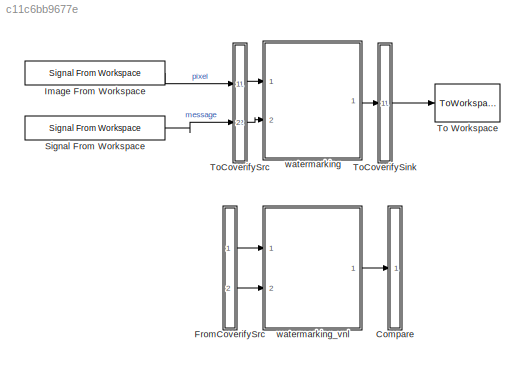
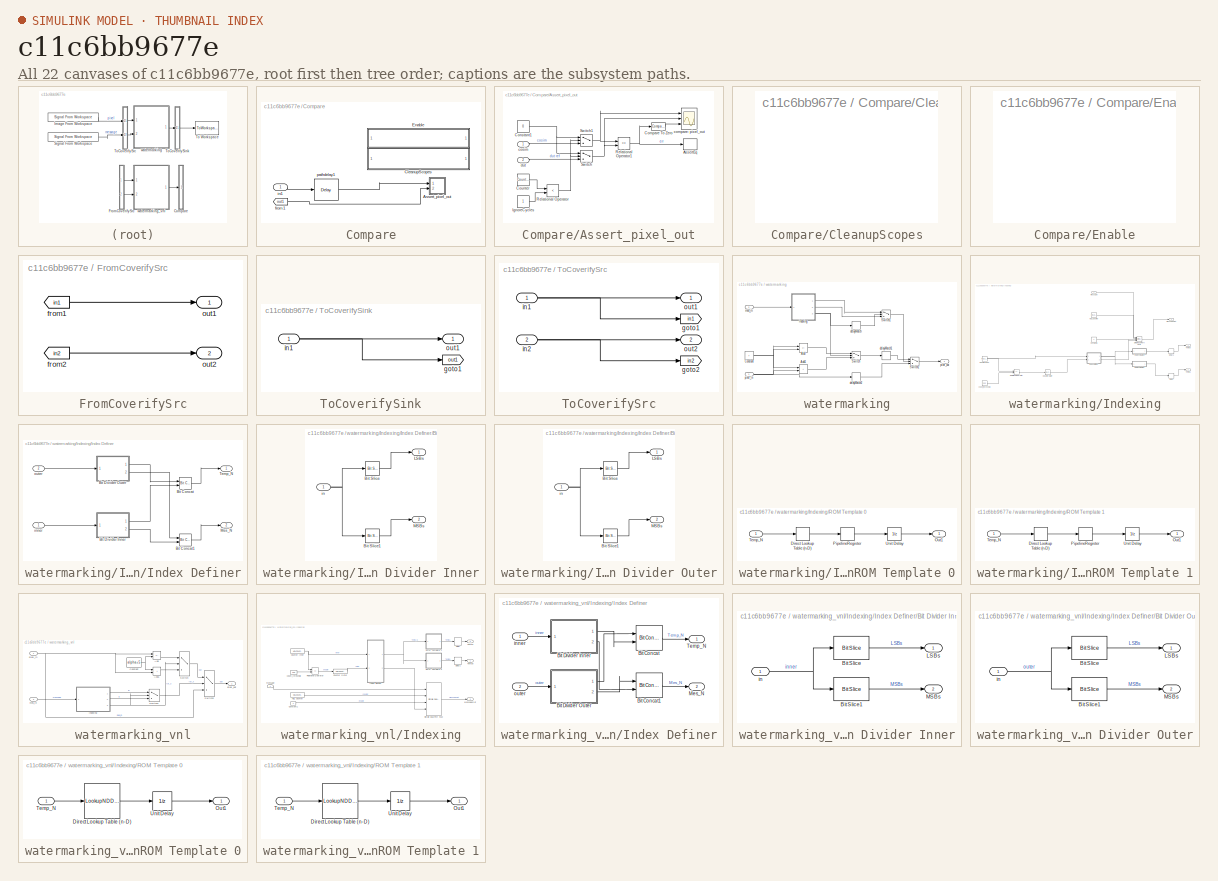
[diagram: thumbnail index - all 22 canvases of the model, root first then tree order]
MODEL slx_c11c6bb9677e
KIND model
CONFIG AbsTol = auto
CONFIG EnableMultiTasking = off
CONFIG FixedStep = auto
CONFIG MaxStep = auto
CONFIG MinStep = auto
CONFIG RelTol = 1e-3
CONFIG SampleTimeConstraint = Unconstrained
CONFIG SolverName = VariableStepAuto
CONFIG StartTime = 0.0
CONFIG StopTime = 10.0
BLOCK [SubSystem] Compare
  Ports = [1]
  RequestExecContextInheritance = off
BLOCK [SubSystem] Compare/Assert_pixel_out
  Ports = [2]
  RequestExecContextInheritance = off
BLOCK [Assertion] Compare/Assert_pixel_out/AssertEq
  StopWhenAssertionFail = off
BLOCK [Reference] Compare/Assert_pixel_out/Compare To Zero  REF=simulink/Logic and Bit
Operations/Compare
To Zero
  Ports = [1, 1]
  SourceBlock = simulink/Logic and Bit\nOperations/Compare\nTo Zero
  SourceProductBaseCode = SL
  SourceType = Compare To Zero
BLOCK [Constant] Compare/Assert_pixel_out/Constant1
  OutDataTypeStr = Inherit: Inherit via back propagation
  SampleTime = -1
  Value = 0
BLOCK [Reference] Compare/Assert_pixel_out/Counter  REF=simulink/Sources/Counter
Free-Running
  Ports = [0, 1]
  SourceBlock = simulink/Sources/Counter\nFree-Running
  SourceProductBaseCode = SL
  SourceType = Counter Free-Running
BLOCK [Constant] Compare/Assert_pixel_out/IgnoreCycles
  OutDataTypeStr = Inherit: Inherit via back propagation
  SampleTime = -1
BLOCK [RelationalOperator] Compare/Assert_pixel_out/Relational Operator
  InputSameDT = off
  Operator = <
  OutDataTypeStr = boolean
  Ports = [2, 1]
BLOCK [RelationalOperator] Compare/Assert_pixel_out/Relational Operator1
  InputSameDT = off
  Operator = ==
  OutDataTypeStr = boolean
  Ports = [2, 1]
BLOCK [Switch] Compare/Assert_pixel_out/Switch
  Criteria = u2 ~= 0
  InputSameDT = off
  SaturateOnIntegerOverflow = off
BLOCK [Switch] Compare/Assert_pixel_out/Switch1
  Criteria = u2 ~= 0
  InputSameDT = off
  SaturateOnIntegerOverflow = off
BLOCK [Scope] Compare/Assert_pixel_out/compare: pixel_out
  Floating = off
  NumInputPorts = 3
  Ports = [3]
  ScopeSpecificationString = Simulink.scopes.TimeScopeBlockCfg('CurrentConfiguration', extmgr.ConfigurationSet(extmgr.Configuration('Core','General UI',true,'MessageLogAutoOpenMode','for warn/fail messages','ShowCloseAll',true,'ShowBringAllForward',true),extmgr.Configuration('Core','Source UI',true,'PlaybackToolbar',true),extmgr.Configuration('Sources','WiredSimulink',true,'PointsPerSignal',50000,'DataLoggingVariableName','Sc...<+3290ch>
BLOCK [Inport] Compare/Assert_pixel_out/cosim
BLOCK [Inport] Compare/Assert_pixel_out/dut
  Port = 2
BLOCK [SubSystem] Compare/CleanupScopes
  OpenFcn = blkName = gcb; %self block\nidx = regexp(blkName, '/CleanupScopes$', 'once');\nblkParent = blkName(1:idx-1);\nblks=find_system(blkParent, 'LookUnderMasks', 'all','blocktype', 'Scope');\nfor itr = 1:length(blks)\n	 hScopeCfg = get_param(blks{itr},'ScopeConfiguration');\n	 hScopeCfg.Visible = ~ hScopeCfg.Visible;\nend\ndrawnow;
  Ports = []
  RequestExecContextInheritance = off
BLOCK [SubSystem] Compare/Enable
  OpenFcn = blkName = gcb;\nidx = regexp(blkName, '/Enable$', 'once');\nblkParent = blkName(1:idx-1);\nblks=find_system(blkParent, 'LookUnderMasks', 'all','blocktype', 'Assertion');\ne = get_param(blks{1}, 'Enabled');\nif strcmp(e, 'on'), f= 'off';, else, f = 'on';, end\nfor ii=1:length(blks), set_param(blks{ii}, 'Enabled', f);, end\nset_param(gcb, 'MaskDisplay',['fprintf(message(''hdlcoder:cosim:vnl_dblclick_assert...<+47ch>
  Ports = []
  RequestExecContextInheritance = off
BLOCK [From] Compare/from1
  GotoTag = out1
  TagVisibility = global
BLOCK [Inport] Compare/in1
BLOCK [Delay] Compare/pathdelay1
  DelayLength = 1
  InputPortMap = u0
  Ports = [1, 1]
BLOCK [SubSystem] FromCoverifySrc
  Ports = [0, 2]
  RequestExecContextInheritance = off
BLOCK [From] FromCoverifySrc/from1
  GotoTag = in1
  TagVisibility = global
BLOCK [From] FromCoverifySrc/from2
  GotoTag = in2
  TagVisibility = global
BLOCK [Outport] FromCoverifySrc/out1
BLOCK [Outport] FromCoverifySrc/out2
  Port = 2
BLOCK [Reference] Image From Workspace  REF=dspsrcs4/Signal From
Workspace
  Ports = [0, 1]
  SourceBlock = dspsrcs4/Signal From\nWorkspace
  SourceProductBaseCode = DS
  SourceType = Signal From Workspace
BLOCK [Reference] Signal From Workspace  REF=dspsrcs4/Signal From
Workspace
  Ports = [0, 1]
  SourceBlock = dspsrcs4/Signal From\nWorkspace
  SourceProductBaseCode = DS
  SourceType = Signal From Workspace
BLOCK [ToWorkspace] To Workspace
  MaxDataPoints = inf
  Ports = [1]
  SampleTime = -1
  Save2DSignal = 2-D array (concatenate along first dimension)
  VariableName = Watermarked
BLOCK [SubSystem] ToCoverifySink
  Ports = [1, 1]
  RequestExecContextInheritance = off
BLOCK [Goto] ToCoverifySink/goto1
  GotoTag = out1
  TagVisibility = global
BLOCK [Inport] ToCoverifySink/in1
BLOCK [Outport] ToCoverifySink/out1
BLOCK [SubSystem] ToCoverifySrc
  Ports = [2, 2]
  RequestExecContextInheritance = off
BLOCK [Goto] ToCoverifySrc/goto1
  GotoTag = in1
  TagVisibility = global
BLOCK [Goto] ToCoverifySrc/goto2
  GotoTag = in2
  TagVisibility = global
BLOCK [Inport] ToCoverifySrc/in1
BLOCK [Inport] ToCoverifySrc/in2
  Port = 2
BLOCK [Outport] ToCoverifySrc/out1
BLOCK [Outport] ToCoverifySrc/out2
  Port = 2
BLOCK [SubSystem] watermarking
  Ports = [2, 1]
  RequestExecContextInheritance = off
  TreatAsAtomicUnit = on
BLOCK [Sum] watermarking/Add
  AccumDataTypeStr = uint8
  IconShape = rectangular
  Inputs = +-
  OutDataTypeStr = uint8
  Ports = [2, 1]
  SampleTime = 1
BLOCK [Sum] watermarking/Add1
  AccumDataTypeStr = uint8
  IconShape = rectangular
  OutDataTypeStr = uint8
  Ports = [2, 1]
  SampleTime = 1
BLOCK [Constant] watermarking/Constant
  OutDataTypeStr = uint8
  SampleTime = 1
  Value = 7
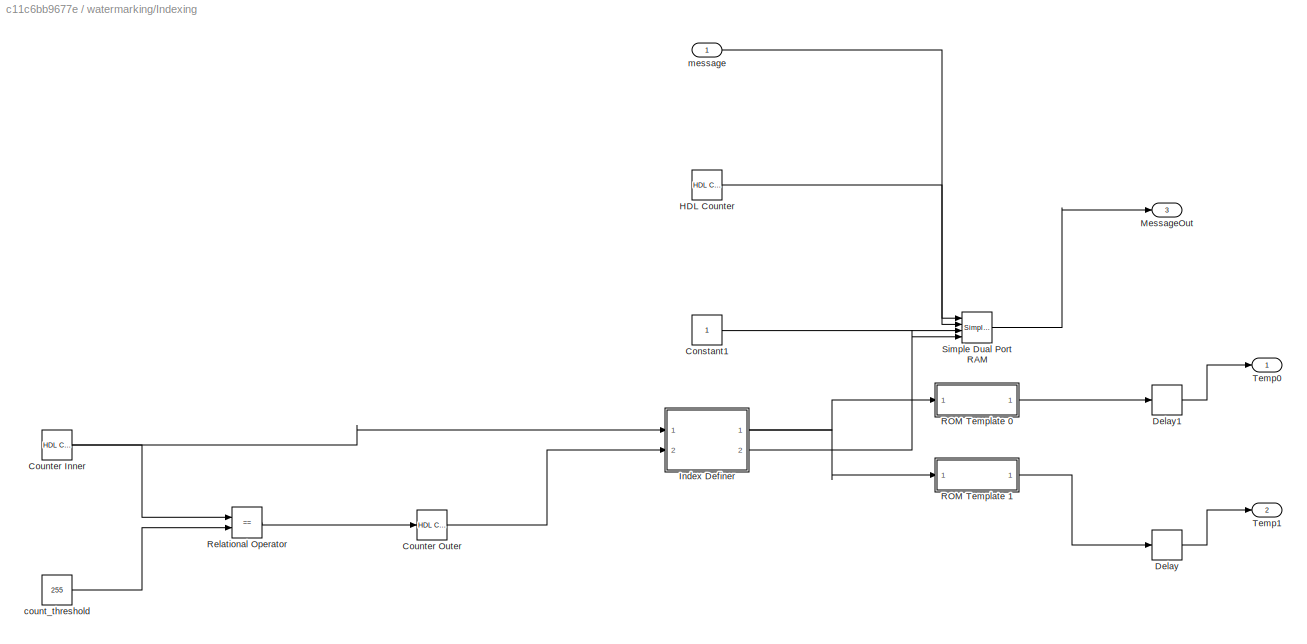
BLOCK [SubSystem] watermarking/Indexing
  Ports = [1, 3]
  RequestExecContextInheritance = off
BLOCK [Constant] watermarking/Indexing/Constant1
  OutDataTypeStr = boolean
  SampleTime = 1
BLOCK [Reference] watermarking/Indexing/Counter Inner  REF=hdlsllib/Sources/HDL Counter
  Ports = [0, 1]
  SourceBlock = hdlsllib/Sources/HDL Counter
  SourceProductBaseCode = SL
  SourceType = HDL Counter
BLOCK [Reference] watermarking/Indexing/Counter Outer  REF=hdlsllib/Sources/HDL Counter
  Ports = [1, 1]
  SourceBlock = hdlsllib/Sources/HDL Counter
  SourceProductBaseCode = SL
  SourceType = HDL Counter
BLOCK [Delay] watermarking/Indexing/Delay
  DelayLength = double(1)
  InitialCondition = 0
  InputPortMap = u0
  Ports = [1, 1]
  SampleTime = 1
BLOCK [Delay] watermarking/Indexing/Delay1
  DelayLength = double(1)
  InitialCondition = 0
  InputPortMap = u0
  Ports = [1, 1]
  SampleTime = 1
BLOCK [Reference] watermarking/Indexing/HDL Counter  REF=hdlsllib/Sources/HDL Counter
  Ports = [0, 1]
  SourceBlock = hdlsllib/Sources/HDL Counter
  SourceProductBaseCode = SL
  SourceType = HDL Counter
BLOCK [SubSystem] watermarking/Indexing/Index Definer
  Ports = [2, 2]
  RequestExecContextInheritance = off
BLOCK [Reference] watermarking/Indexing/Index Definer/Bit Concat  REF=hdlsllib/Logic and Bit
Operations/Bit Concat
  Ports = [2, 1]
  SourceBlock = hdlsllib/Logic and Bit\nOperations/Bit Concat
  SourceProductBaseCode = SL
  SourceType = Bit Concat
BLOCK [Reference] watermarking/Indexing/Index Definer/Bit Concat1  REF=hdlsllib/Logic and Bit
Operations/Bit Concat
  Ports = [2, 1]
  SourceBlock = hdlsllib/Logic and Bit\nOperations/Bit Concat
  SourceProductBaseCode = SL
  SourceType = Bit Concat
BLOCK [SubSystem] watermarking/Indexing/Index Definer/Bit Divider Inner
  Ports = [1, 2]
  RequestExecContextInheritance = off
BLOCK [Reference] watermarking/Indexing/Index Definer/Bit Divider Inner/Bit Slice  REF=hdlsllib/Logic and Bit
Operations/Bit Slice
  Ports = [1, 1]
  SourceBlock = hdlsllib/Logic and Bit\nOperations/Bit Slice
  SourceProductBaseCode = SL
  SourceType = Bit Slice
BLOCK [Reference] watermarking/Indexing/Index Definer/Bit Divider Inner/Bit Slice1  REF=hdlsllib/Logic and Bit
Operations/Bit Slice
  Ports = [1, 1]
  SourceBlock = hdlsllib/Logic and Bit\nOperations/Bit Slice
  SourceProductBaseCode = SL
  SourceType = Bit Slice
BLOCK [Outport] watermarking/Indexing/Index Definer/Bit Divider Inner/LSBs
  SampleTime = 1
BLOCK [Outport] watermarking/Indexing/Index Definer/Bit Divider Inner/MSBs
  Port = 2
  SampleTime = 1
BLOCK [Inport] watermarking/Indexing/Index Definer/Bit Divider Inner/in
  OutDataTypeStr = uint8
  PortDimensions = 1
  SampleTime = 1
BLOCK [SubSystem] watermarking/Indexing/Index Definer/Bit Divider Outer
  Ports = [1, 2]
  RequestExecContextInheritance = off
BLOCK [Reference] watermarking/Indexing/Index Definer/Bit Divider Outer/Bit Slice  REF=hdlsllib/Logic and Bit
Operations/Bit Slice
  Ports = [1, 1]
  SourceBlock = hdlsllib/Logic and Bit\nOperations/Bit Slice
  SourceProductBaseCode = SL
  SourceType = Bit Slice
BLOCK [Reference] watermarking/Indexing/Index Definer/Bit Divider Outer/Bit Slice1  REF=hdlsllib/Logic and Bit
Operations/Bit Slice
  Ports = [1, 1]
  SourceBlock = hdlsllib/Logic and Bit\nOperations/Bit Slice
  SourceProductBaseCode = SL
  SourceType = Bit Slice
BLOCK [Outport] watermarking/Indexing/Index Definer/Bit Divider Outer/LSBs
  SampleTime = 1
BLOCK [Outport] watermarking/Indexing/Index Definer/Bit Divider Outer/MSBs
  Port = 2
  SampleTime = 1
BLOCK [Inport] watermarking/Indexing/Index Definer/Bit Divider Outer/in
  OutDataTypeStr = uint8
  PortDimensions = 1
  SampleTime = 1
BLOCK [Outport] watermarking/Indexing/Index Definer/Mes_N
  Port = 2
  SampleTime = 1
BLOCK [Outport] watermarking/Indexing/Index Definer/Temp_N
  SampleTime = 1
BLOCK [Inport] watermarking/Indexing/Index Definer/inner
  OutDataTypeStr = uint8
  PortDimensions = 1
  SampleTime = 1
BLOCK [Inport] watermarking/Indexing/Index Definer/outer
  OutDataTypeStr = uint8
  Port = 2
  PortDimensions = 1
  SampleTime = 1
BLOCK [Outport] watermarking/Indexing/MessageOut
  Port = 3
  SampleTime = 1
BLOCK [SubSystem] watermarking/Indexing/ROM Template 0
  Ports = [1, 1]
  RequestExecContextInheritance = off
BLOCK [LookupNDDirect] watermarking/Indexing/ROM Template 0/Direct Lookup Table (n-D)
  DiagnosticForOutOfRangeInput = Error
  NumberOfTableDimensions = 1
  Ports = [1, 1]
  SampleTime = 1
  Table = reshape(logical([1 1 1 0 0 0 0 0 1 1 1 0 0 0 0 0 0 0 0 0 0 1 1 1 0 0 0 0 0 1 1 1 1 1 0 0 0 0 0 0 0 0 1 1 1 0 0 0 0 0 0 0 1 1 0 0 0 0 0 0 0 0 0 1 0 0 0 0 0 0 0 0 0 0 0 1 1 1 0 0 0 0 1 1 1 0 0 0 0 0 0 0 0 0 0 0 0 0 0 0 0 0 0 0 0 0 0 0 0 1 1 1 1 1 1 1 0 0 0 0 0 0 0 0 0 0 0 0 0 0 0 0 0 0 0 0 0 0 0 0 0 0 1 1 1 1 0 0 0 0 0 0 0 0 0 0 0 0 0 0 0 0 0 0 0 0 0 0 0 0 0 0 0 0 0 0 0 0 0 0 0 0 0 0 0 0 0 0 0 0 0 0...<+1683ch>
  TableDataTypeStr = boolean
BLOCK [Outport] watermarking/Indexing/ROM Template 0/Out1
  SampleTime = 1
BLOCK [Delay] watermarking/Indexing/ROM Template 0/PipelineRegister
  DelayLength = double(1)
  InitialCondition = 0
  InputPortMap = u0
  Ports = [1, 1]
  SampleTime = 1
BLOCK [Inport] watermarking/Indexing/ROM Template 0/Temp_N
  OutDataTypeStr = fixdt(0, 10, 0)
  PortDimensions = 1
  SampleTime = 1
BLOCK [UnitDelay] watermarking/Indexing/ROM Template 0/Unit Delay
  SampleTime = 1
BLOCK [SubSystem] watermarking/Indexing/ROM Template 1
  Ports = [1, 1]
  RequestExecContextInheritance = off
BLOCK [LookupNDDirect] watermarking/Indexing/ROM Template 1/Direct Lookup Table (n-D)
  DiagnosticForOutOfRangeInput = Error
  NumberOfTableDimensions = 1
  Ports = [1, 1]
  SampleTime = 1
  Table = reshape(logical([1 1 0 0 0 0 0 0 0 0 0 1 1 1 0 0 0 0 0 0 1 1 0 0 0 0 0 0 0 0 0 0 1 1 1 0 0 0 0 0 0 0 1 1 1 0 0 0 0 0 0 0 0 1 1 1 0 0 0 0 0 0 0 1 0 1 1 1 1 0 0 0 1 1 1 0 0 0 0 0 0 0 0 0 0 0 1 1 1 1 0 0 0 1 1 1 0 0 0 1 1 1 1 1 1 1 0 0 0 0 0 0 0 0 0 0 0 0 0 0 1 1 1 1 1 1 1 0 0 0 0 0 0 1 1 1 0 0 0 0 0 0 0 0 0 0 0 0 0 0 0 0 0 0 1 1 1 0 0 0 0 0 0 0 0 0 0 0 0 0 0 0 0 0 0 0 1 1 0 0 0 0 0 0 0 0 0 0 0 0 0 0...<+1683ch>
  TableDataTypeStr = boolean
BLOCK [Outport] watermarking/Indexing/ROM Template 1/Out1
  SampleTime = 1
BLOCK [Delay] watermarking/Indexing/ROM Template 1/PipelineRegister
  DelayLength = double(1)
  InitialCondition = 0
  InputPortMap = u0
  Ports = [1, 1]
  SampleTime = 1
BLOCK [Inport] watermarking/Indexing/ROM Template 1/Temp_N
  OutDataTypeStr = fixdt(0, 10, 0)
  PortDimensions = 1
  SampleTime = 1
BLOCK [UnitDelay] watermarking/Indexing/ROM Template 1/Unit Delay
  SampleTime = 1
BLOCK [RelationalOperator] watermarking/Indexing/Relational Operator
  InputSameDT = off
  Operator = ==
  OutDataTypeStr = boolean
  Ports = [2, 1]
  SampleTime = 1
BLOCK [Reference] watermarking/Indexing/Simple Dual Port RAM  REF=hdlsllib/HDL RAMs/Simple Dual Port RAM
  Ports = [4, 1]
  SourceBlock = hdlsllib/HDL RAMs/Simple Dual Port RAM
  SourceProductBaseCode = SL
  SourceType = Simple Dual-port RAM
BLOCK [Outport] watermarking/Indexing/Temp0
  SampleTime = 1
BLOCK [Outport] watermarking/Indexing/Temp1
  Port = 2
  SampleTime = 1
BLOCK [Constant] watermarking/Indexing/count_threshold
  OutDataTypeStr = uint8
  SampleTime = 1
  Value = 255
BLOCK [Inport] watermarking/Indexing/message
  OutDataTypeStr = boolean
  PortDimensions = 1
  SampleTime = 1
BLOCK [Switch] watermarking/Switch
  Criteria = u2 ~= 0
  InputSameDT = off
  OutDataTypeStr = uint8
  SampleTime = 1
  SaturateOnIntegerOverflow = off
  Threshold = double(0)
BLOCK [Switch] watermarking/Switch1
  Criteria = u2 ~= 0
  InputSameDT = off
  OutDataTypeStr = boolean
  SampleTime = 1
  SaturateOnIntegerOverflow = off
  Threshold = double(0)
BLOCK [Switch] watermarking/Switch2
  Criteria = u2 ~= 0
  InputSameDT = off
  OutDataTypeStr = uint8
  SampleTime = 1
  SaturateOnIntegerOverflow = off
  Threshold = double(0)
BLOCK [Delay] watermarking/delayMatch
  DelayLength = double(1)
  InitialCondition = 0
  InputPortMap = u0
  Ports = [1, 1]
  SampleTime = 1
BLOCK [Delay] watermarking/delayMatch1
  DelayLength = double(1)
  InitialCondition = 0
  InputPortMap = u0
  Ports = [1, 1]
  SampleTime = 1
BLOCK [Delay] watermarking/delayMatch2
  DelayLength = double(1)
  InitialCondition = 0
  InputPortMap = u0
  Ports = [1, 1]
  SampleTime = 1
BLOCK [Inport] watermarking/mes_in
  OutDataTypeStr = boolean
  Port = 2
  PortDimensions = 1
  SampleTime = 1
BLOCK [Inport] watermarking/pixel_in
  OutDataTypeStr = uint8
  PortDimensions = 1
  SampleTime = 1
BLOCK [Outport] watermarking/pixel_out
  SampleTime = 1
  VectorParamsAs1DForOutWhenUnconnected = off
BLOCK [SubSystem] watermarking_vnl
  Ports = [2, 1]
  RequestExecContextInheritance = off
  TreatAsAtomicUnit = on
BLOCK [Sum] watermarking_vnl/Add
  IconShape = rectangular
  Inputs = +-
  OutDataTypeStr = uint8
  OutMax = [255]
  OutMin = [0]
  Ports = [2, 1]
BLOCK [Sum] watermarking_vnl/Add1
  IconShape = rectangular
  OutDataTypeStr = uint8
  OutMax = [255]
  OutMin = [0]
  Ports = [2, 1]
BLOCK [Constant] watermarking_vnl/Constant
  OutDataTypeStr = uint8
  SampleTime = -1
  Value = alpha+5
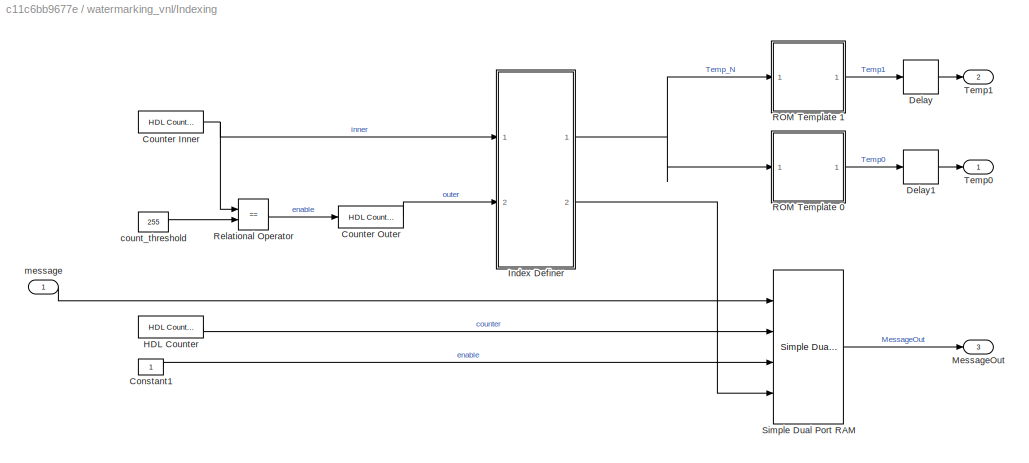
BLOCK [SubSystem] watermarking_vnl/Indexing
  Ports = [1, 3]
  RequestExecContextInheritance = off
BLOCK [Constant] watermarking_vnl/Indexing/Constant1
  OutDataTypeStr = boolean
  OutMax = [1]
  OutMin = [1]
  SampleTime = -1
BLOCK [Reference] watermarking_vnl/Indexing/Counter Inner  REF=hdlsllib/Sources/HDL Counter
  Ports = [0, 1]
  SourceBlock = hdlsllib/Sources/HDL Counter
  SourceProductBaseCode = SL
  SourceType = HDL Counter
BLOCK [Reference] watermarking_vnl/Indexing/Counter Outer  REF=hdlsllib/Sources/HDL Counter
  Ports = [1, 1]
  SourceBlock = hdlsllib/Sources/HDL Counter
  SourceProductBaseCode = SL
  SourceType = HDL Counter
BLOCK [Delay] watermarking_vnl/Indexing/Delay
  DelayLength = 1
  InitialCondition = 0
  InputPortMap = u0
  Ports = [1, 1]
BLOCK [Delay] watermarking_vnl/Indexing/Delay1
  DelayLength = 1
  InitialCondition = 0
  InputPortMap = u0
  Ports = [1, 1]
BLOCK [Reference] watermarking_vnl/Indexing/HDL Counter  REF=hdlsllib/Sources/HDL Counter
  Ports = [0, 1]
  SourceBlock = hdlsllib/Sources/HDL Counter
  SourceProductBaseCode = SL
  SourceType = HDL Counter
BLOCK [SubSystem] watermarking_vnl/Indexing/Index Definer
  Ports = [2, 2]
  RequestExecContextInheritance = off
BLOCK [Reference] watermarking_vnl/Indexing/Index Definer/Bit Concat  REF=hdlsllib/Logic and Bit
Operations/Bit Concat
  Ports = [2, 1]
  SourceBlock = hdlsllib/Logic and Bit\nOperations/Bit Concat
  SourceProductBaseCode = SL
  SourceType = Bit Concat
BLOCK [Reference] watermarking_vnl/Indexing/Index Definer/Bit Concat1  REF=hdlsllib/Logic and Bit
Operations/Bit Concat
  Ports = [2, 1]
  SourceBlock = hdlsllib/Logic and Bit\nOperations/Bit Concat
  SourceProductBaseCode = SL
  SourceType = Bit Concat
BLOCK [SubSystem] watermarking_vnl/Indexing/Index Definer/Bit Divider Inner
  Ports = [1, 2]
  RequestExecContextInheritance = off
BLOCK [Reference] watermarking_vnl/Indexing/Index Definer/Bit Divider Inner/Bit Slice  REF=hdlsllib/Logic and Bit
Operations/Bit Slice
  Ports = [1, 1]
  SourceBlock = hdlsllib/Logic and Bit\nOperations/Bit Slice
  SourceProductBaseCode = SL
  SourceType = Bit Slice
BLOCK [Reference] watermarking_vnl/Indexing/Index Definer/Bit Divider Inner/Bit Slice1  REF=hdlsllib/Logic and Bit
Operations/Bit Slice
  Ports = [1, 1]
  SourceBlock = hdlsllib/Logic and Bit\nOperations/Bit Slice
  SourceProductBaseCode = SL
  SourceType = Bit Slice
BLOCK [Outport] watermarking_vnl/Indexing/Index Definer/Bit Divider Inner/LSBs
BLOCK [Outport] watermarking_vnl/Indexing/Index Definer/Bit Divider Inner/MSBs
  Port = 2
BLOCK [Inport] watermarking_vnl/Indexing/Index Definer/Bit Divider Inner/in
BLOCK [SubSystem] watermarking_vnl/Indexing/Index Definer/Bit Divider Outer
  Ports = [1, 2]
  RequestExecContextInheritance = off
BLOCK [Reference] watermarking_vnl/Indexing/Index Definer/Bit Divider Outer/Bit Slice  REF=hdlsllib/Logic and Bit
Operations/Bit Slice
  Ports = [1, 1]
  SourceBlock = hdlsllib/Logic and Bit\nOperations/Bit Slice
  SourceProductBaseCode = SL
  SourceType = Bit Slice
BLOCK [Reference] watermarking_vnl/Indexing/Index Definer/Bit Divider Outer/Bit Slice1  REF=hdlsllib/Logic and Bit
Operations/Bit Slice
  Ports = [1, 1]
  SourceBlock = hdlsllib/Logic and Bit\nOperations/Bit Slice
  SourceProductBaseCode = SL
  SourceType = Bit Slice
BLOCK [Outport] watermarking_vnl/Indexing/Index Definer/Bit Divider Outer/LSBs
BLOCK [Outport] watermarking_vnl/Indexing/Index Definer/Bit Divider Outer/MSBs
  Port = 2
BLOCK [Inport] watermarking_vnl/Indexing/Index Definer/Bit Divider Outer/in
BLOCK [Outport] watermarking_vnl/Indexing/Index Definer/Mes_N
  Port = 2
BLOCK [Outport] watermarking_vnl/Indexing/Index Definer/Temp_N
BLOCK [Inport] watermarking_vnl/Indexing/Index Definer/inner
BLOCK [Inport] watermarking_vnl/Indexing/Index Definer/outer
  Port = 2
BLOCK [Outport] watermarking_vnl/Indexing/MessageOut
  Port = 3
BLOCK [SubSystem] watermarking_vnl/Indexing/ROM Template 0
  Ports = [1, 1]
  RequestExecContextInheritance = off
BLOCK [LookupNDDirect] watermarking_vnl/Indexing/ROM Template 0/Direct Lookup Table (n-D)
  DiagnosticForOutOfRangeInput = Error
  NumberOfTableDimensions = 1
  Ports = [1, 1]
  Table = T0
  TableMax = [1]
  TableMin = [0]
BLOCK [Outport] watermarking_vnl/Indexing/ROM Template 0/Out1
BLOCK [Inport] watermarking_vnl/Indexing/ROM Template 0/Temp_N
BLOCK [UnitDelay] watermarking_vnl/Indexing/ROM Template 0/Unit Delay
  HasFrameUpgradeWarning = on
  SampleTime = -1
BLOCK [SubSystem] watermarking_vnl/Indexing/ROM Template 1
  Ports = [1, 1]
  RequestExecContextInheritance = off
BLOCK [LookupNDDirect] watermarking_vnl/Indexing/ROM Template 1/Direct Lookup Table (n-D)
  DiagnosticForOutOfRangeInput = Error
  NumberOfTableDimensions = 1
  Ports = [1, 1]
  Table = T1
  TableMax = [1]
  TableMin = [0]
BLOCK [Outport] watermarking_vnl/Indexing/ROM Template 1/Out1
BLOCK [Inport] watermarking_vnl/Indexing/ROM Template 1/Temp_N
BLOCK [UnitDelay] watermarking_vnl/Indexing/ROM Template 1/Unit Delay
  HasFrameUpgradeWarning = on
  SampleTime = -1
BLOCK [RelationalOperator] watermarking_vnl/Indexing/Relational Operator
  InputSameDT = off
  Operator = ==
  OutDataTypeStr = boolean
  Ports = [2, 1]
BLOCK [Reference] watermarking_vnl/Indexing/Simple Dual Port RAM  REF=hdlsllib/HDL RAMs/Simple Dual Port RAM
  Ports = [4, 1]
  SourceBlock = hdlsllib/HDL RAMs/Simple Dual Port RAM
  SourceProductBaseCode = SL
  SourceType = Simple Dual-port RAM
BLOCK [Outport] watermarking_vnl/Indexing/Temp0
BLOCK [Outport] watermarking_vnl/Indexing/Temp1
  Port = 2
BLOCK [Constant] watermarking_vnl/Indexing/count_threshold
  OutDataTypeStr = uint8
  OutMax = [255]
  OutMin = [255]
  SampleTime = -1
  Value = 255
BLOCK [Inport] watermarking_vnl/Indexing/message
BLOCK [Switch] watermarking_vnl/Switch
  Criteria = u2 ~= 0
  InputSameDT = off
  SaturateOnIntegerOverflow = off
BLOCK [Switch] watermarking_vnl/Switch1
  Criteria = u2 ~= 0
  InputSameDT = off
  SaturateOnIntegerOverflow = off
BLOCK [Switch] watermarking_vnl/Switch2
  Criteria = u2 ~= 0
  InputSameDT = off
  SaturateOnIntegerOverflow = off
BLOCK [Inport] watermarking_vnl/mes_in
  Port = 2
BLOCK [Inport] watermarking_vnl/pixel_in
BLOCK [Outport] watermarking_vnl/pixel_out
  VectorParamsAs1DForOutWhenUnconnected = off
LINE Compare/Assert_pixel_out/Compare To Zero:1 -> Compare/Assert_pixel_out/compare: pixel_out:3
NET Compare/Assert_pixel_out/Constant1:1 -> Compare/Assert_pixel_out/Switch1:1, Compare/Assert_pixel_out/Switch:1
LINE Compare/Assert_pixel_out/Counter:1 -> Compare/Assert_pixel_out/Relational Operator:1
LINE Compare/Assert_pixel_out/IgnoreCycles:1 -> Compare/Assert_pixel_out/Relational Operator:2
NET Compare/Assert_pixel_out/Relational Operator1:1 -> Compare/Assert_pixel_out/AssertEq:1, Compare/Assert_pixel_out/Compare To Zero:1
NET Compare/Assert_pixel_out/Relational Operator:1 -> Compare/Assert_pixel_out/Switch1:2, Compare/Assert_pixel_out/Switch:2
NET Compare/Assert_pixel_out/Switch1:1 -> Compare/Assert_pixel_out/Relational Operator1:1, Compare/Assert_pixel_out/compare: pixel_out:1
NET Compare/Assert_pixel_out/Switch:1 -> Compare/Assert_pixel_out/Relational Operator1:2, Compare/Assert_pixel_out/compare: pixel_out:2
LINE Compare/Assert_pixel_out/cosim:1 -> Compare/Assert_pixel_out/Switch1:3
LINE Compare/Assert_pixel_out/dut:1 -> Compare/Assert_pixel_out/Switch:3
LINE Compare/from1:1 -> Compare/Assert_pixel_out:2
LINE Compare/in1:1 -> Compare/pathdelay1:1
LINE Compare/pathdelay1:1 -> Compare/Assert_pixel_out:1
LINE FromCoverifySrc/from1:1 -> FromCoverifySrc/out1:1
LINE FromCoverifySrc/from2:1 -> FromCoverifySrc/out2:1
LINE FromCoverifySrc:1 -> watermarking_vnl:1
LINE FromCoverifySrc:2 -> watermarking_vnl:2
LINE Image From Workspace:1 -> ToCoverifySrc:1
LINE Signal From Workspace:1 -> ToCoverifySrc:2
NET ToCoverifySink/in1:1 -> ToCoverifySink/goto1:1, ToCoverifySink/out1:1
LINE ToCoverifySink:1 -> To Workspace:1
NET ToCoverifySrc/in1:1 -> ToCoverifySrc/goto1:1, ToCoverifySrc/out1:1
NET ToCoverifySrc/in2:1 -> ToCoverifySrc/goto2:1, ToCoverifySrc/out2:1
LINE ToCoverifySrc:1 -> watermarking:1
LINE ToCoverifySrc:2 -> watermarking:2
LINE watermarking/Add1:1 -> watermarking/Switch:3
LINE watermarking/Add:1 -> watermarking/Switch:1
NET watermarking/Constant:1 -> watermarking/Add1:1, watermarking/Add:2
LINE watermarking/Indexing/Constant1:1 -> watermarking/Indexing/Simple Dual Port RAM:3
NET watermarking/Indexing/Counter Inner:1 -> watermarking/Indexing/Index Definer:1, watermarking/Indexing/Relational Operator:1
LINE watermarking/Indexing/Counter Outer:1 -> watermarking/Indexing/Index Definer:2
LINE watermarking/Indexing/Delay1:1 -> watermarking/Indexing/Temp0:1
LINE watermarking/Indexing/Delay:1 -> watermarking/Indexing/Temp1:1
LINE watermarking/Indexing/HDL Counter:1 -> watermarking/Indexing/Simple Dual Port RAM:2
LINE watermarking/Indexing/Index Definer/Bit Concat1:1 -> watermarking/Indexing/Index Definer/Mes_N:1
LINE watermarking/Indexing/Index Definer/Bit Concat:1 -> watermarking/Indexing/Index Definer/Temp_N:1
LINE watermarking/Indexing/Index Definer/Bit Divider Inner/Bit Slice1:1 -> watermarking/Indexing/Index Definer/Bit Divider Inner/MSBs:1
LINE watermarking/Indexing/Index Definer/Bit Divider Inner/Bit Slice:1 -> watermarking/Indexing/Index Definer/Bit Divider Inner/LSBs:1
NET watermarking/Indexing/Index Definer/Bit Divider Inner/in:1 -> watermarking/Indexing/Index Definer/Bit Divider Inner/Bit Slice1:1, watermarking/Indexing/Index Definer/Bit Divider Inner/Bit Slice:1
LINE watermarking/Indexing/Index Definer/Bit Divider Inner:1 -> watermarking/Indexing/Index Definer/Bit Concat:2
LINE watermarking/Indexing/Index Definer/Bit Divider Inner:2 -> watermarking/Indexing/Index Definer/Bit Concat1:2
LINE watermarking/Indexing/Index Definer/Bit Divider Outer/Bit Slice1:1 -> watermarking/Indexing/Index Definer/Bit Divider Outer/MSBs:1
LINE watermarking/Indexing/Index Definer/Bit Divider Outer/Bit Slice:1 -> watermarking/Indexing/Index Definer/Bit Divider Outer/LSBs:1
NET watermarking/Indexing/Index Definer/Bit Divider Outer/in:1 -> watermarking/Indexing/Index Definer/Bit Divider Outer/Bit Slice1:1, watermarking/Indexing/Index Definer/Bit Divider Outer/Bit Slice:1
LINE watermarking/Indexing/Index Definer/Bit Divider Outer:1 -> watermarking/Indexing/Index Definer/Bit Concat:1
LINE watermarking/Indexing/Index Definer/Bit Divider Outer:2 -> watermarking/Indexing/Index Definer/Bit Concat1:1
LINE watermarking/Indexing/Index Definer/inner:1 -> watermarking/Indexing/Index Definer/Bit Divider Inner:1
LINE watermarking/Indexing/Index Definer/outer:1 -> watermarking/Indexing/Index Definer/Bit Divider Outer:1
NET watermarking/Indexing/Index Definer:1 -> watermarking/Indexing/ROM Template 0:1, watermarking/Indexing/ROM Template 1:1
LINE watermarking/Indexing/Index Definer:2 -> watermarking/Indexing/Simple Dual Port RAM:4
LINE watermarking/Indexing/ROM Template 0/Direct Lookup Table (n-D):1 -> watermarking/Indexing/ROM Template 0/PipelineRegister:1
LINE watermarking/Indexing/ROM Template 0/PipelineRegister:1 -> watermarking/Indexing/ROM Template 0/Unit Delay:1
LINE watermarking/Indexing/ROM Template 0/Temp_N:1 -> watermarking/Indexing/ROM Template 0/Direct Lookup Table (n-D):1
LINE watermarking/Indexing/ROM Template 0/Unit Delay:1 -> watermarking/Indexing/ROM Template 0/Out1:1
LINE watermarking/Indexing/ROM Template 0:1 -> watermarking/Indexing/Delay1:1
LINE watermarking/Indexing/ROM Template 1/Direct Lookup Table (n-D):1 -> watermarking/Indexing/ROM Template 1/PipelineRegister:1
LINE watermarking/Indexing/ROM Template 1/PipelineRegister:1 -> watermarking/Indexing/ROM Template 1/Unit Delay:1
LINE watermarking/Indexing/ROM Template 1/Temp_N:1 -> watermarking/Indexing/ROM Template 1/Direct Lookup Table (n-D):1
LINE watermarking/Indexing/ROM Template 1/Unit Delay:1 -> watermarking/Indexing/ROM Template 1/Out1:1
LINE watermarking/Indexing/ROM Template 1:1 -> watermarking/Indexing/Delay:1
LINE watermarking/Indexing/Relational Operator:1 -> watermarking/Indexing/Counter Outer:1
LINE watermarking/Indexing/Simple Dual Port RAM:1 -> watermarking/Indexing/MessageOut:1
LINE watermarking/Indexing/count_threshold:1 -> watermarking/Indexing/Relational Operator:2
LINE watermarking/Indexing/message:1 -> watermarking/Indexing/Simple Dual Port RAM:1
LINE watermarking/Indexing:1 -> watermarking/Switch1:1
LINE watermarking/Indexing:2 -> watermarking/Switch1:3
NET watermarking/Indexing:3 -> watermarking/Switch:2, watermarking/delayMatch:1
LINE watermarking/Switch1:1 -> watermarking/Switch2:2
LINE watermarking/Switch2:1 -> watermarking/pixel_out:1
LINE watermarking/Switch:1 -> watermarking/delayMatch1:1
LINE watermarking/delayMatch1:1 -> watermarking/Switch2:1
LINE watermarking/delayMatch2:1 -> watermarking/Switch2:3
LINE watermarking/delayMatch:1 -> watermarking/Switch1:2
LINE watermarking/mes_in:1 -> watermarking/Indexing:1
NET watermarking/pixel_in:1 -> watermarking/Add1:2, watermarking/Add:1, watermarking/delayMatch2:1
LINE watermarking:1 -> ToCoverifySink:1
LINE watermarking_vnl/Add1:1 -> watermarking_vnl/Switch:3
LINE watermarking_vnl/Add:1 -> watermarking_vnl/Switch:1
NET watermarking_vnl/Constant:1 -> watermarking_vnl/Add1:1, watermarking_vnl/Add:2
LINE watermarking_vnl/Indexing/Constant1:1 -> watermarking_vnl/Indexing/Simple Dual Port RAM:3
NET watermarking_vnl/Indexing/Counter Inner:1 -> watermarking_vnl/Indexing/Index Definer:1, watermarking_vnl/Indexing/Relational Operator:1
LINE watermarking_vnl/Indexing/Counter Outer:1 -> watermarking_vnl/Indexing/Index Definer:2
LINE watermarking_vnl/Indexing/Delay1:1 -> watermarking_vnl/Indexing/Temp0:1
LINE watermarking_vnl/Indexing/Delay:1 -> watermarking_vnl/Indexing/Temp1:1
LINE watermarking_vnl/Indexing/HDL Counter:1 -> watermarking_vnl/Indexing/Simple Dual Port RAM:2
LINE watermarking_vnl/Indexing/Index Definer/Bit Concat1:1 -> watermarking_vnl/Indexing/Index Definer/Mes_N:1
LINE watermarking_vnl/Indexing/Index Definer/Bit Concat:1 -> watermarking_vnl/Indexing/Index Definer/Temp_N:1
LINE watermarking_vnl/Indexing/Index Definer/Bit Divider Inner/Bit Slice1:1 -> watermarking_vnl/Indexing/Index Definer/Bit Divider Inner/MSBs:1
LINE watermarking_vnl/Indexing/Index Definer/Bit Divider Inner/Bit Slice:1 -> watermarking_vnl/Indexing/Index Definer/Bit Divider Inner/LSBs:1
NET watermarking_vnl/Indexing/Index Definer/Bit Divider Inner/in:1 -> watermarking_vnl/Indexing/Index Definer/Bit Divider Inner/Bit Slice1:1, watermarking_vnl/Indexing/Index Definer/Bit Divider Inner/Bit Slice:1
LINE watermarking_vnl/Indexing/Index Definer/Bit Divider Inner:1 -> watermarking_vnl/Indexing/Index Definer/Bit Concat:2
LINE watermarking_vnl/Indexing/Index Definer/Bit Divider Inner:2 -> watermarking_vnl/Indexing/Index Definer/Bit Concat1:2
LINE watermarking_vnl/Indexing/Index Definer/Bit Divider Outer/Bit Slice1:1 -> watermarking_vnl/Indexing/Index Definer/Bit Divider Outer/MSBs:1
LINE watermarking_vnl/Indexing/Index Definer/Bit Divider Outer/Bit Slice:1 -> watermarking_vnl/Indexing/Index Definer/Bit Divider Outer/LSBs:1
NET watermarking_vnl/Indexing/Index Definer/Bit Divider Outer/in:1 -> watermarking_vnl/Indexing/Index Definer/Bit Divider Outer/Bit Slice1:1, watermarking_vnl/Indexing/Index Definer/Bit Divider Outer/Bit Slice:1
LINE watermarking_vnl/Indexing/Index Definer/Bit Divider Outer:1 -> watermarking_vnl/Indexing/Index Definer/Bit Concat:1
LINE watermarking_vnl/Indexing/Index Definer/Bit Divider Outer:2 -> watermarking_vnl/Indexing/Index Definer/Bit Concat1:1
LINE watermarking_vnl/Indexing/Index Definer/inner:1 -> watermarking_vnl/Indexing/Index Definer/Bit Divider Inner:1
LINE watermarking_vnl/Indexing/Index Definer/outer:1 -> watermarking_vnl/Indexing/Index Definer/Bit Divider Outer:1
NET watermarking_vnl/Indexing/Index Definer:1 -> watermarking_vnl/Indexing/ROM Template 0:1, watermarking_vnl/Indexing/ROM Template 1:1
LINE watermarking_vnl/Indexing/Index Definer:2 -> watermarking_vnl/Indexing/Simple Dual Port RAM:4
LINE watermarking_vnl/Indexing/ROM Template 0/Direct Lookup Table (n-D):1 -> watermarking_vnl/Indexing/ROM Template 0/Unit Delay:1
LINE watermarking_vnl/Indexing/ROM Template 0/Temp_N:1 -> watermarking_vnl/Indexing/ROM Template 0/Direct Lookup Table (n-D):1
LINE watermarking_vnl/Indexing/ROM Template 0/Unit Delay:1 -> watermarking_vnl/Indexing/ROM Template 0/Out1:1
LINE watermarking_vnl/Indexing/ROM Template 0:1 -> watermarking_vnl/Indexing/Delay1:1
LINE watermarking_vnl/Indexing/ROM Template 1/Direct Lookup Table (n-D):1 -> watermarking_vnl/Indexing/ROM Template 1/Unit Delay:1
LINE watermarking_vnl/Indexing/ROM Template 1/Temp_N:1 -> watermarking_vnl/Indexing/ROM Template 1/Direct Lookup Table (n-D):1
LINE watermarking_vnl/Indexing/ROM Template 1/Unit Delay:1 -> watermarking_vnl/Indexing/ROM Template 1/Out1:1
LINE watermarking_vnl/Indexing/ROM Template 1:1 -> watermarking_vnl/Indexing/Delay:1
LINE watermarking_vnl/Indexing/Relational Operator:1 -> watermarking_vnl/Indexing/Counter Outer:1
LINE watermarking_vnl/Indexing/Simple Dual Port RAM:1 -> watermarking_vnl/Indexing/MessageOut:1
LINE watermarking_vnl/Indexing/count_threshold:1 -> watermarking_vnl/Indexing/Relational Operator:2
LINE watermarking_vnl/Indexing/message:1 -> watermarking_vnl/Indexing/Simple Dual Port RAM:1
LINE watermarking_vnl/Indexing:1 -> watermarking_vnl/Switch1:1
LINE watermarking_vnl/Indexing:2 -> watermarking_vnl/Switch1:3
NET watermarking_vnl/Indexing:3 -> watermarking_vnl/Switch1:2, watermarking_vnl/Switch:2
LINE watermarking_vnl/Switch1:1 -> watermarking_vnl/Switch2:2
LINE watermarking_vnl/Switch2:1 -> watermarking_vnl/pixel_out:1
LINE watermarking_vnl/Switch:1 -> watermarking_vnl/Switch2:1
LINE watermarking_vnl/mes_in:1 -> watermarking_vnl/Indexing:1
NET watermarking_vnl/pixel_in:1 -> watermarking_vnl/Add1:2, watermarking_vnl/Add:1, watermarking_vnl/Switch2:3
LINE watermarking_vnl:1 -> Compare:1
note: NET lines group one-source signal fan-out (src -> all destinations, sorted); 1:1 wires keep LINE
